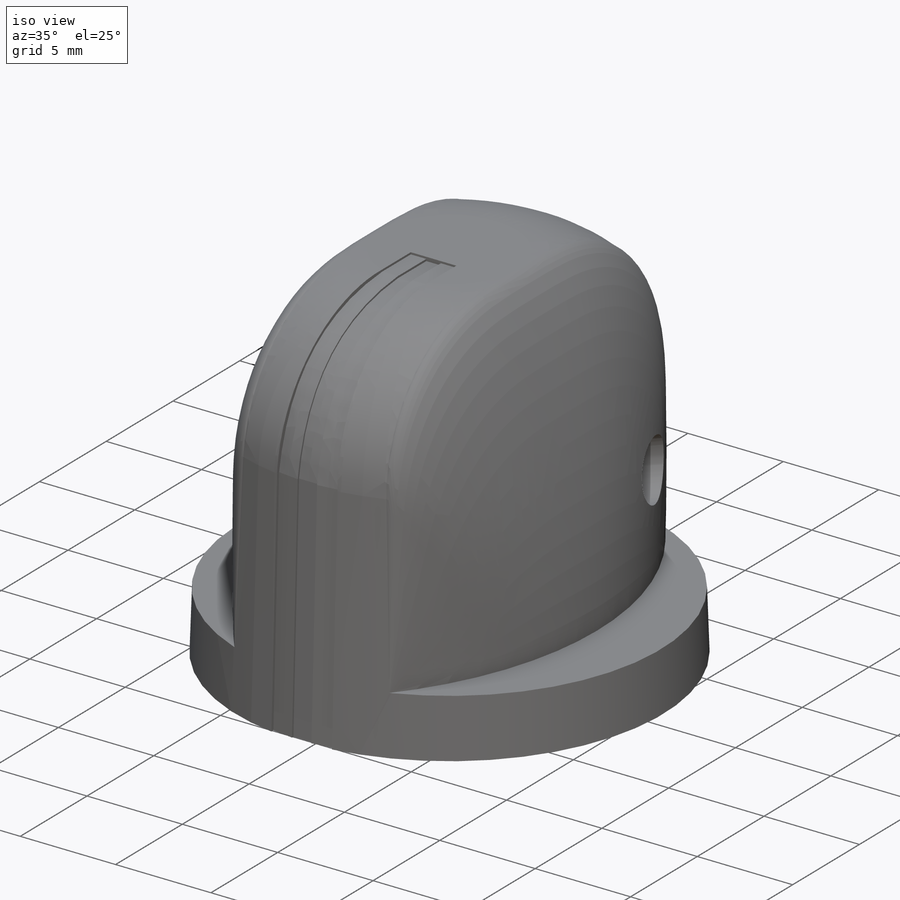
[diagram: iso view]
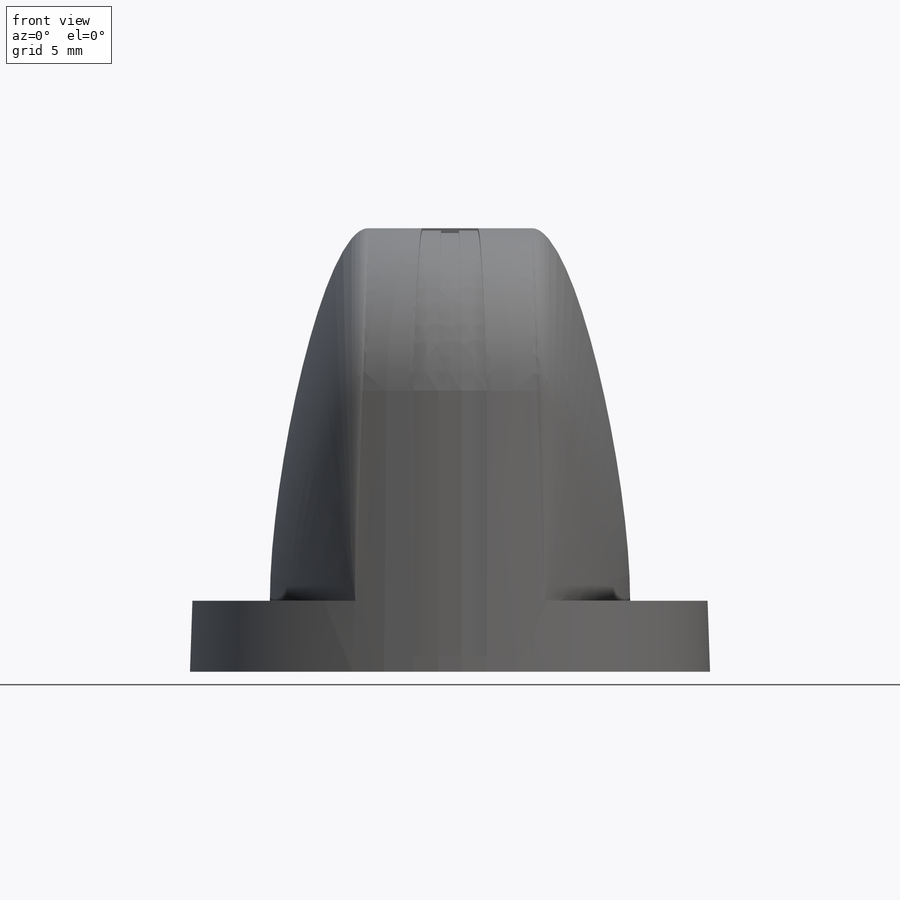
[diagram: front view]
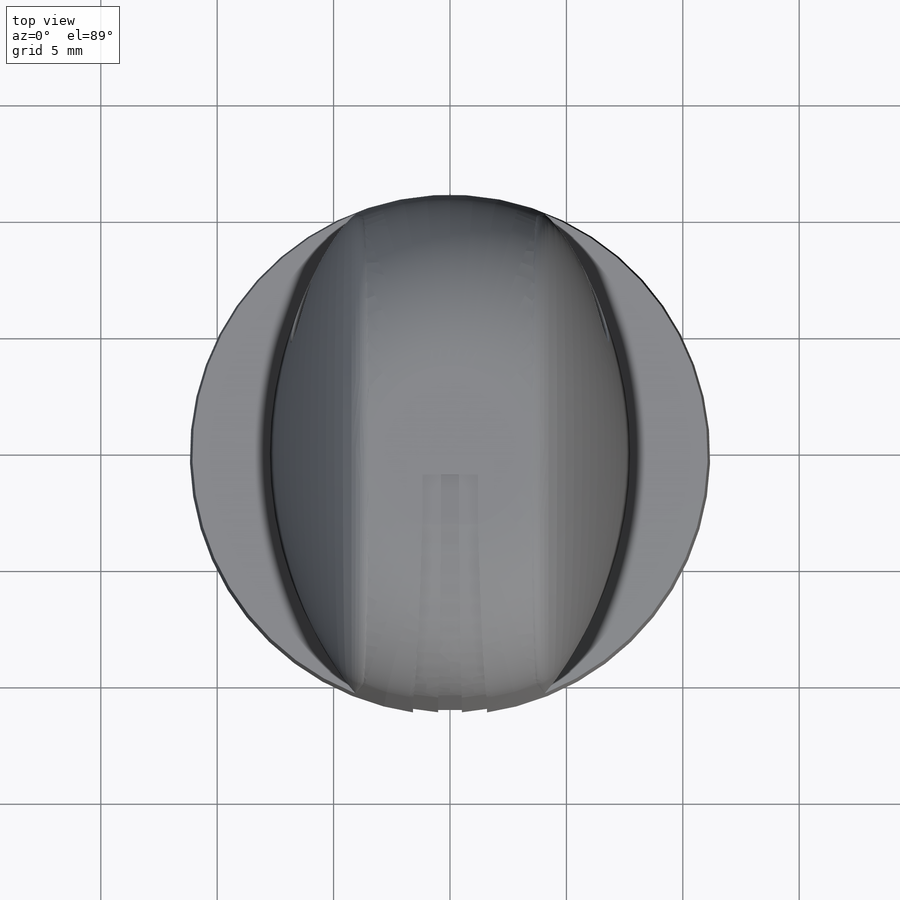
[diagram: top view]
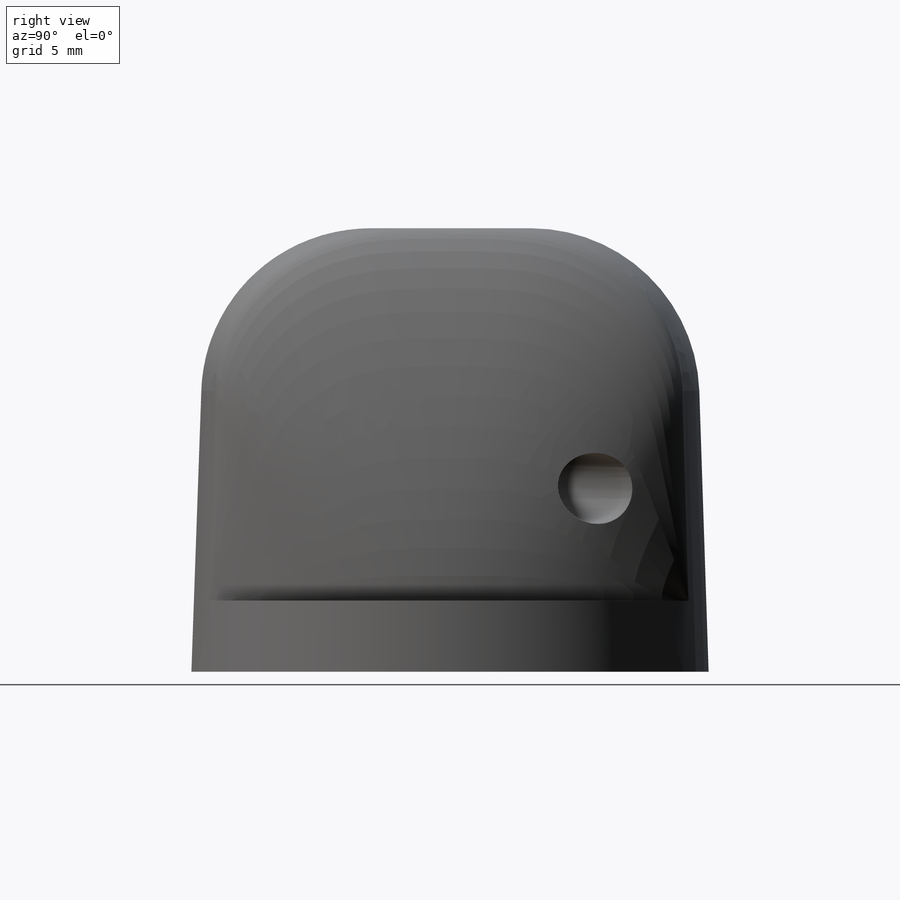
[diagram: right view]
SOLIDWORKS PART (.sldprt)
format: sldprt  version: not decoded by parser v0  size: 641,024 bytes
history: native  units: mm
features: sketch x16, cut_extrude x6, plane x4, extrude x2, fillet x2, material x1, mirror x1 (+11 scaffold rows collapsed)
feature tree (43):
  scaffold x11  (default folders/planes/origin — collapsed)
  material  "PMMA"
  sketch  "Skica2"  dims[D1=22.352mm]
  extrude  "Přidat vysunutím1"  Depth=3.048mm
  sketch  "Skica3"  dims[D1=4.064mm D2=4.064mm]
  extrude  "Přidat vysunutím2"  Depth=16.002mm
  fillet  "Zaoblit1"  Radius=7.239mm
  sketch  "Skica5"  dims[D1=0.0mm]
  sketch  "Skica6"  dims[D1=2.54mm]
  sketch  "Skica8"  dims[D1=0.0mm]
  sketch  "Skica10"  dims[D1=2.54mm]
  fillet  "Ohraničení8"  [1 undecoded]
  sketch  "Skica12"  dims[c1.D1=1.8492mm c1.D2=6.35mm c2.D1=2.7432mm]
  cut_extrude  "Odebrat vysunutím2"  Depth=12.7mm
  sketch  "Skica13"  dims[D1=8.636mm]
  cut_extrude  "Odebrat vysunutím3"  Depth=2.032mm
  plane  "Rovina1"
  sketch  "Skica15"
  plane  "Rovina2"
  sketch  "Skica16"  dims[c1.D1=3.175mm c1.D2=1.016mm c1.D3=~0.43261mm c1.D4=~0.43261mm c1.D5=1.0795mm c2.D1=~15.738407mm c2.D2=~15.535207mm c3.D1=~7.666003mm c3.D3=~7.666003mm c4.D1=0.1016mm c4.D2=0.1016mm c4.D3=0.508mm c5.D1=~0.525556mm c5.D2=3.175mm c5.D3=1.016mm c5.D4=~0.43261mm c5.D5=~0.43261mm c5.D6=1.0795mm c5.D7=~0.525556mm]
  cut_extrude  "Odebrat vysunutím4"  [1 undecoded]
  sketch  "Skica17"
  cut_extrude  "Odebrat vysunutím5"  Depth=0.1016mm
  sketch  "Skica18"  dims[D1=0.0mm]
  cut_extrude  "Odebrat vysunutím6"  Depth=0.1016mm
  plane  "Rovina3"
  sketch  "Skica20"  dims[D1=3.175mm]
  sketch  "Skica21"  dims[D2=0.1016mm D1=0.0mm]
  sketch  "Skica22"
  plane  "Rovina4"
  sketch  "Skica23"  dims[D1=7.874mm]
  cut_extrude  "Odebrat vysunutím7"  [1 undecoded]
  mirror  "Zrcadlit1"
decode coverage: 20 of 27 modeling features carry decoded parameters
note: ~ marks probable driven/reference dimensions
note: 3 parameter values undecoded
summary: no parameter record found for 3 features
note: suppression state not decoded; provenance and decode notes live in map.json
